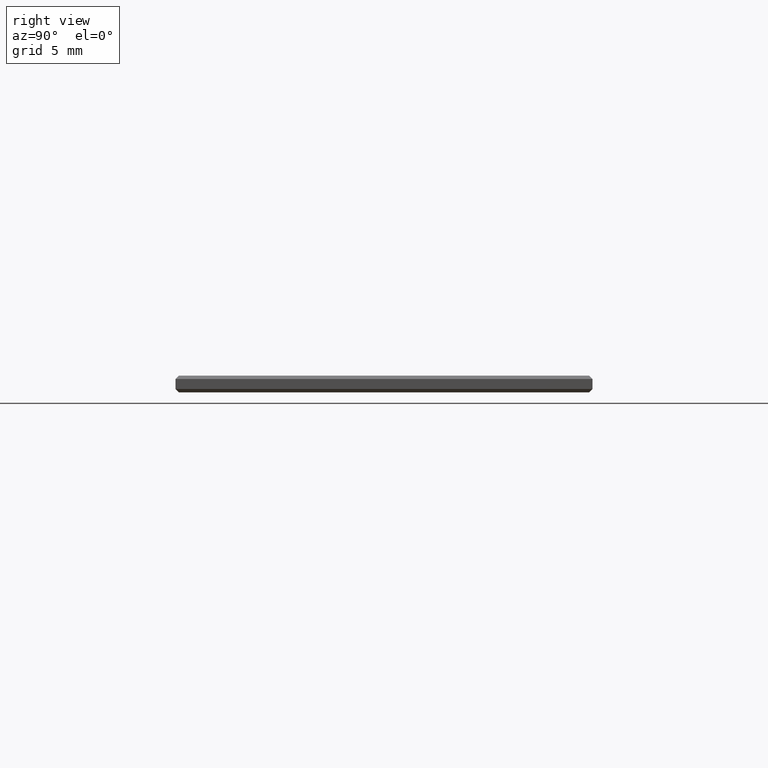
[diagram: clean part render]
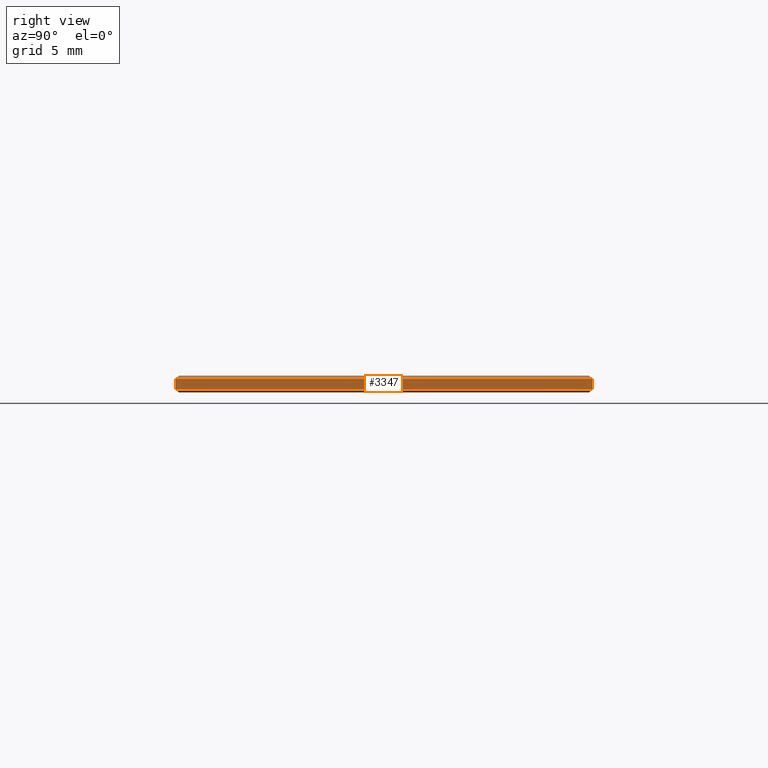
[diagram: same view with one face highlighted and labeled with its STEP entity id]
A machine part, right view. The second image highlights one B-rep face of the part: STEP entity #3347.
In plain terms, the highlighted planar face has unit normal (-1, -0, 0).
Its self-contained STEP definition (entity closure, byte-faithful):
#47 = EDGE_CURVE ( 'NONE', #4573, #6079, #1671, .T. ) ;
#62 = DIRECTION ( 'NONE',  ( 1.387778780781445700E-016, -1.000000000000000000, 0.0000000000000000000 ) ) ;
#203 = VERTEX_POINT ( 'NONE', #1794 ) ;
#473 = VECTOR ( 'NONE', #6320, 1000.000000000000000 ) ;
#1020 = EDGE_CURVE ( 'NONE', #203, #4573, #1838, .T. ) ;
#1259 = EDGE_LOOP ( 'NONE', ( #6391, #4589, #6226, #5548 ) ) ;
#1671 = LINE ( 'NONE', #5816, #473 ) ;
#1794 = CARTESIAN_POINT ( 'NONE',  ( 17.99999999999999600, -12.49999999999999500, 0.2999999999999977100 ) ) ;
#1838 = LINE ( 'NONE', #6089, #4570 ) ;
#1913 = VECTOR ( 'NONE', #4355, 1000.000000000000000 ) ;
#2004 = AXIS2_PLACEMENT_3D ( 'NONE', #2643, #3157, #62 ) ;
#2023 = DIRECTION ( 'NONE',  ( 1.387778780781445700E-016, -1.000000000000000000, 0.0000000000000000000 ) ) ;
#2376 = CARTESIAN_POINT ( 'NONE',  ( 17.99999999999999300, 12.50000000000000500, 0.5000000000000000000 ) ) ;
#2643 = CARTESIAN_POINT ( 'NONE',  ( 17.99999999999999300, 12.50000000000000500, 0.5000000000000000000 ) ) ;
#3075 = CARTESIAN_POINT ( 'NONE',  ( 17.99999999999999300, 12.50000000000000500, -0.2999999999999942700 ) ) ;
#3113 = PLANE ( 'NONE',  #2004 ) ;
#3157 = DIRECTION ( 'NONE',  ( -1.000000000000000000, -1.387778780781445700E-016, 0.0000000000000000000 ) ) ;
#3191 = LINE ( 'NONE', #5071, #5908 ) ;
#3347 = ADVANCED_FACE ( 'NONE', ( #6360 ), #3113, .F. ) ;
#3551 = DIRECTION ( 'NONE',  ( -0.0000000000000000000, -0.0000000000000000000, -1.000000000000000000 ) ) ;
#4355 = DIRECTION ( 'NONE',  ( -0.0000000000000000000, -0.0000000000000000000, -1.000000000000000000 ) ) ;
#4462 = LINE ( 'NONE', #2376, #1913 ) ;
#4570 = VECTOR ( 'NONE', #3551, 1000.000000000000000 ) ;
#4573 = VERTEX_POINT ( 'NONE', #4984 ) ;
#4589 = ORIENTED_EDGE ( 'NONE', *, *, #47, .T. ) ;
#4705 = CARTESIAN_POINT ( 'NONE',  ( 17.99999999999999300, 12.50000000000000500, 0.2999999999999977700 ) ) ;
#4775 = VERTEX_POINT ( 'NONE', #4705 ) ;
#4984 = CARTESIAN_POINT ( 'NONE',  ( 17.99999999999999600, -12.49999999999999500, -0.2999999999999942700 ) ) ;
#5071 = CARTESIAN_POINT ( 'NONE',  ( 17.99999999999999600, -12.49999999999999500, 0.2999999999999977100 ) ) ;
#5430 = EDGE_CURVE ( 'NONE', #4775, #203, #3191, .T. ) ;
#5548 = ORIENTED_EDGE ( 'NONE', *, *, #5430, .T. ) ;
#5816 = CARTESIAN_POINT ( 'NONE',  ( 17.99999999999999300, 12.50000000000000500, -0.2999999999999942700 ) ) ;
#5899 = EDGE_CURVE ( 'NONE', #4775, #6079, #4462, .T. ) ;
#5908 = VECTOR ( 'NONE', #2023, 1000.000000000000000 ) ;
#6079 = VERTEX_POINT ( 'NONE', #3075 ) ;
#6089 = CARTESIAN_POINT ( 'NONE',  ( 17.99999999999999600, -12.49999999999999500, 0.5000000000000000000 ) ) ;
#6226 = ORIENTED_EDGE ( 'NONE', *, *, #5899, .F. ) ;
#6320 = DIRECTION ( 'NONE',  ( -1.387778780781445700E-016, 1.000000000000000000, -0.0000000000000000000 ) ) ;
#6360 = FACE_OUTER_BOUND ( 'NONE', #1259, .T. ) ;
#6391 = ORIENTED_EDGE ( 'NONE', *, *, #1020, .T. ) ;